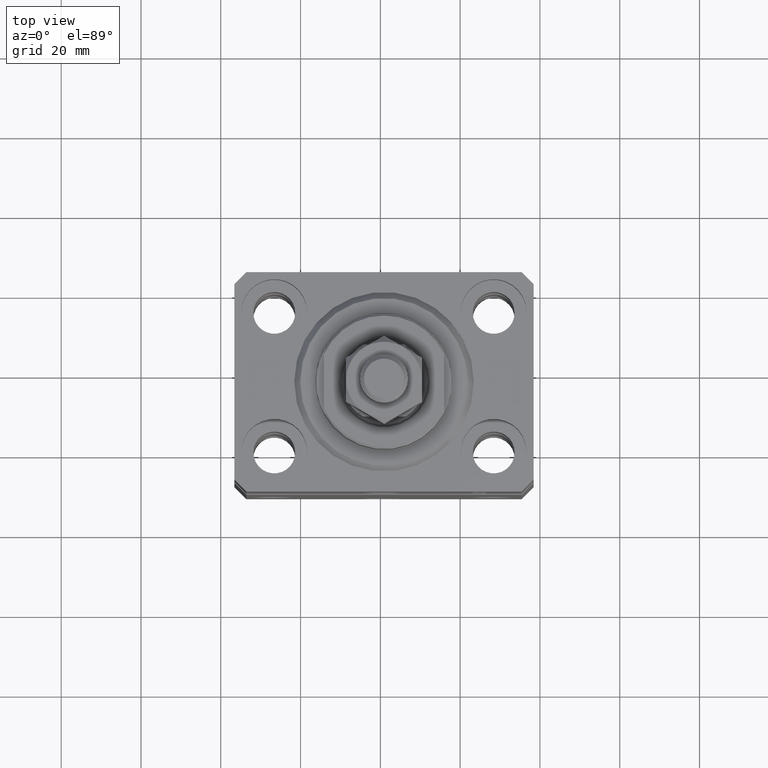
[diagram: clean part render]
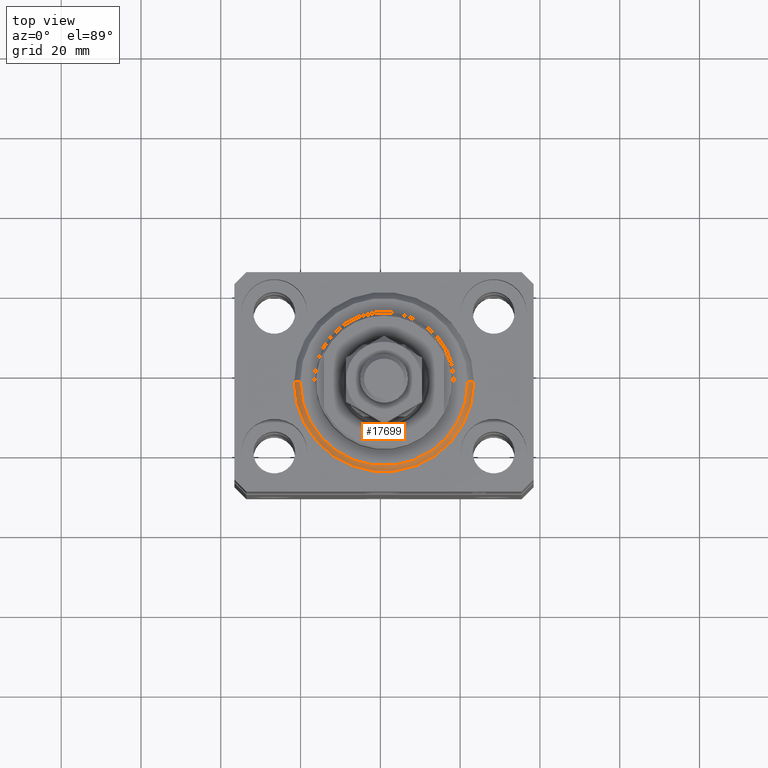
[diagram: same view with one face highlighted and labeled with its STEP entity id]
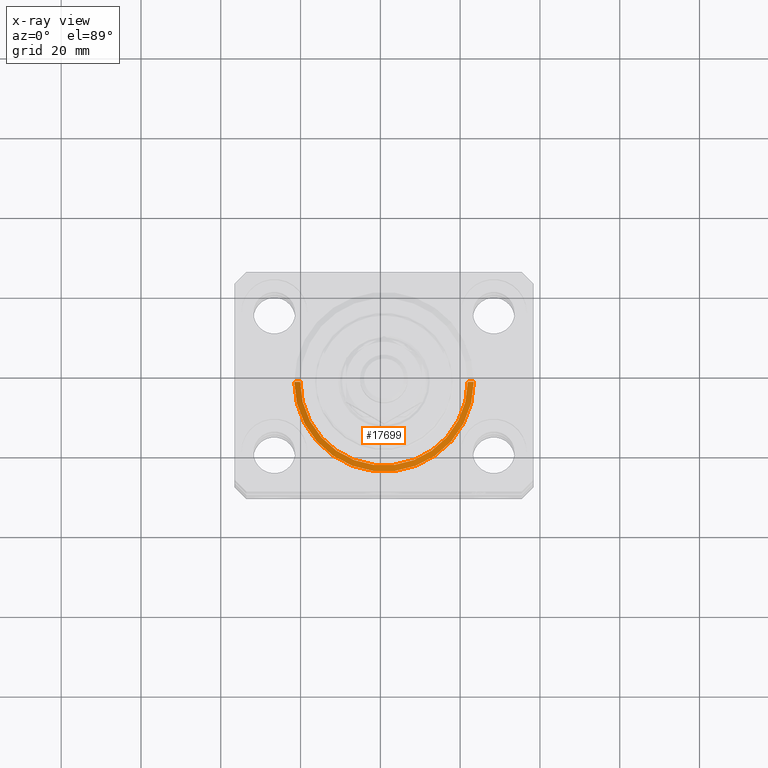
[diagram: x-ray of the same camera — body ghosted, the highlighted face saturated]
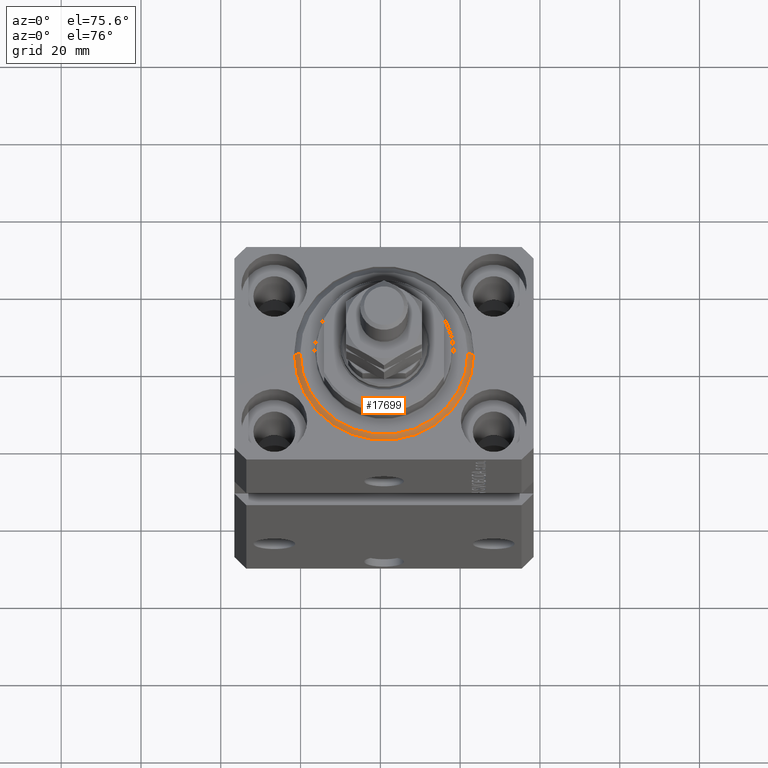
[diagram: same view with one face highlighted and labeled with its STEP entity id]
A machine part, top view. The second image highlights one B-rep face of the part: STEP entity #17699.
The next image is the same camera in x-ray: the body ghosted, the highlighted face saturated — about 0% of this face is hidden behind the body in this view.
A second angle (auxiliary view) of the same face is appended — the face is thin or edge-on in the first view.
In plain terms, the highlighted conical surface has half-angle 45 deg.
Its self-contained STEP definition (entity closure, byte-faithful):
#133 = CIRCLE ( 'NONE', #18018, 22.50000000000000355 ) ;
#1196 = VECTOR ( 'NONE', #34598, 1000.000000000000114 ) ;
#2087 = LINE ( 'NONE', #27087, #14238 ) ;
#2589 = LINE ( 'NONE', #19619, #1196 ) ;
#2755 = CARTESIAN_POINT ( 'NONE',  ( 20.99999999999998934, 0.000000000000000000, 0.000000000000000000 ) ) ;
#5887 = ORIENTED_EDGE ( 'NONE', *, *, #31652, .F. ) ;
#6002 = ORIENTED_EDGE ( 'NONE', *, *, #12823, .F. ) ;
#6918 = DIRECTION ( 'NONE',  ( 1.000000000000000000, 0.000000000000000000, 0.000000000000000000 ) ) ;
#7824 = FACE_OUTER_BOUND ( 'NONE', #10970, .T. ) ;
#9331 = DIRECTION ( 'NONE',  ( 0.7071067811865500152, 0.000000000000000000, 0.7071067811865451302 ) ) ;
#10028 = DIRECTION ( 'NONE',  ( -0.000000000000000000, -0.000000000000000000, -1.000000000000000000 ) ) ;
#10970 = EDGE_LOOP ( 'NONE', ( #5887, #15487, #11578, #6002 ) ) ;
#11578 = ORIENTED_EDGE ( 'NONE', *, *, #40203, .T. ) ;
#12280 = VERTEX_POINT ( 'NONE', #2755 ) ;
#12823 = EDGE_CURVE ( 'NONE', #14695, #19892, #133, .T. ) ;
#13073 = CARTESIAN_POINT ( 'NONE',  ( -22.50000000000000355, 0.000000000000000000, 1.500000000000001332 ) ) ;
#14238 = VECTOR ( 'NONE', #9331, 1000.000000000000114 ) ;
#14695 = VERTEX_POINT ( 'NONE', #13073 ) ;
#15487 = ORIENTED_EDGE ( 'NONE', *, *, #44310, .F. ) ;
#17172 = VERTEX_POINT ( 'NONE', #42349 ) ;
#17699 = ADVANCED_FACE ( 'NONE', ( #7824 ), #38182, .T. ) ;
#18018 = AXIS2_PLACEMENT_3D ( 'NONE', #30201, #44233, #43779 ) ;
#19619 = CARTESIAN_POINT ( 'NONE',  ( -22.50000000000000355, 2.755455298081545172E-15, 1.500000000000001332 ) ) ;
#19892 = VERTEX_POINT ( 'NONE', #29259 ) ;
#24089 = AXIS2_PLACEMENT_3D ( 'NONE', #41580, #10028, #24284 ) ;
#24284 = DIRECTION ( 'NONE',  ( 1.000000000000000000, 0.000000000000000000, 0.000000000000000000 ) ) ;
#27087 = CARTESIAN_POINT ( 'NONE',  ( 22.50000000000000355, 0.000000000000000000, 1.500000000000001332 ) ) ;
#29259 = CARTESIAN_POINT ( 'NONE',  ( 22.50000000000000355, 2.755455298081545172E-15, 1.500000000000001332 ) ) ;
#30201 = CARTESIAN_POINT ( 'NONE',  ( 0.000000000000000000, 0.000000000000000000, 1.500000000000001332 ) ) ;
#31533 = CIRCLE ( 'NONE', #24089, 20.99999999999998934 ) ;
#31652 = EDGE_CURVE ( 'NONE', #17172, #14695, #2589, .T. ) ;
#34478 = AXIS2_PLACEMENT_3D ( 'NONE', #38929, #42901, #6918 ) ;
#34598 = DIRECTION ( 'NONE',  ( -0.7071067811865500152, 8.659560562354963673E-17, 0.7071067811865451302 ) ) ;
#38182 = CONICAL_SURFACE ( 'NONE', #34478, 22.50000000000000355, 0.7853981633974517207 ) ;
#38929 = CARTESIAN_POINT ( 'NONE',  ( 0.000000000000000000, 0.000000000000000000, 1.500000000000001332 ) ) ;
#40203 = EDGE_CURVE ( 'NONE', #12280, #19892, #2087, .T. ) ;
#41580 = CARTESIAN_POINT ( 'NONE',  ( 0.000000000000000000, 0.000000000000000000, 0.000000000000000000 ) ) ;
#42349 = CARTESIAN_POINT ( 'NONE',  ( -20.99999999999998934, 2.663606788145492628E-15, 0.000000000000000000 ) ) ;
#42901 = DIRECTION ( 'NONE',  ( -0.000000000000000000, -0.000000000000000000, 1.000000000000000000 ) ) ;
#43779 = DIRECTION ( 'NONE',  ( 1.000000000000000000, 0.000000000000000000, 0.000000000000000000 ) ) ;
#44233 = DIRECTION ( 'NONE',  ( -0.000000000000000000, -0.000000000000000000, 1.000000000000000000 ) ) ;
#44310 = EDGE_CURVE ( 'NONE', #12280, #17172, #31533, .T. ) ;